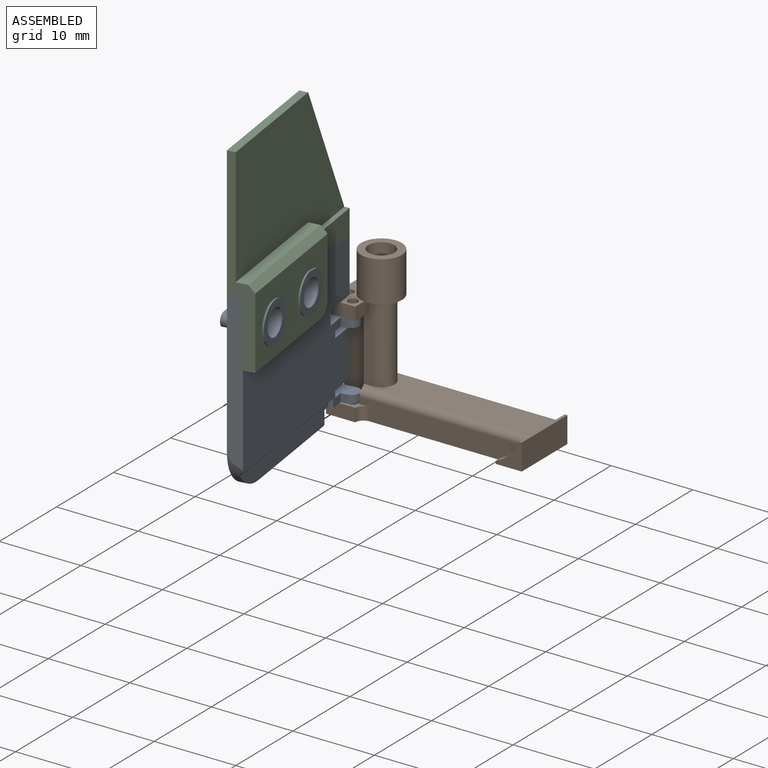
[diagram: assembled view]
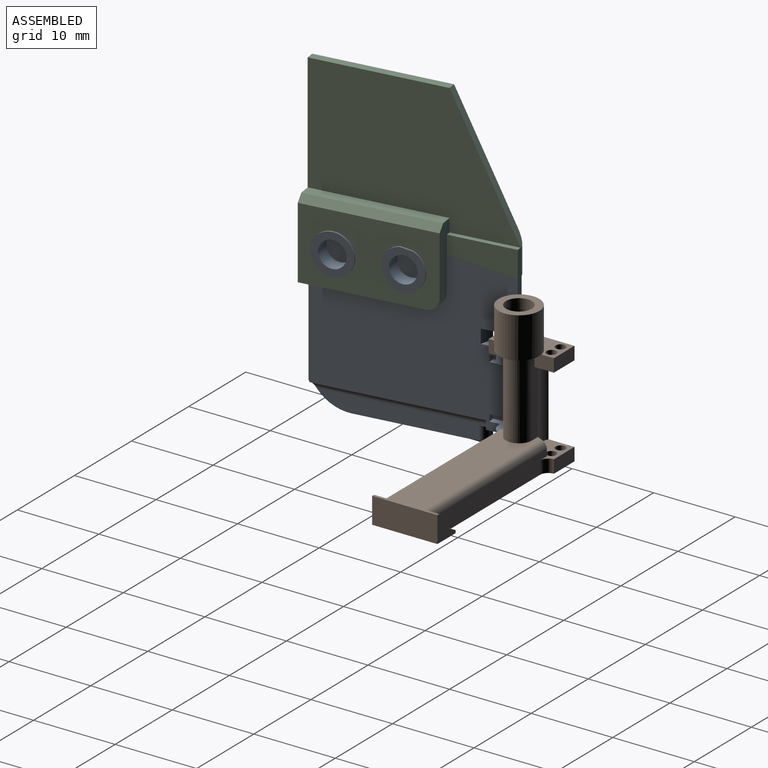
[diagram: assembled view, second angle]
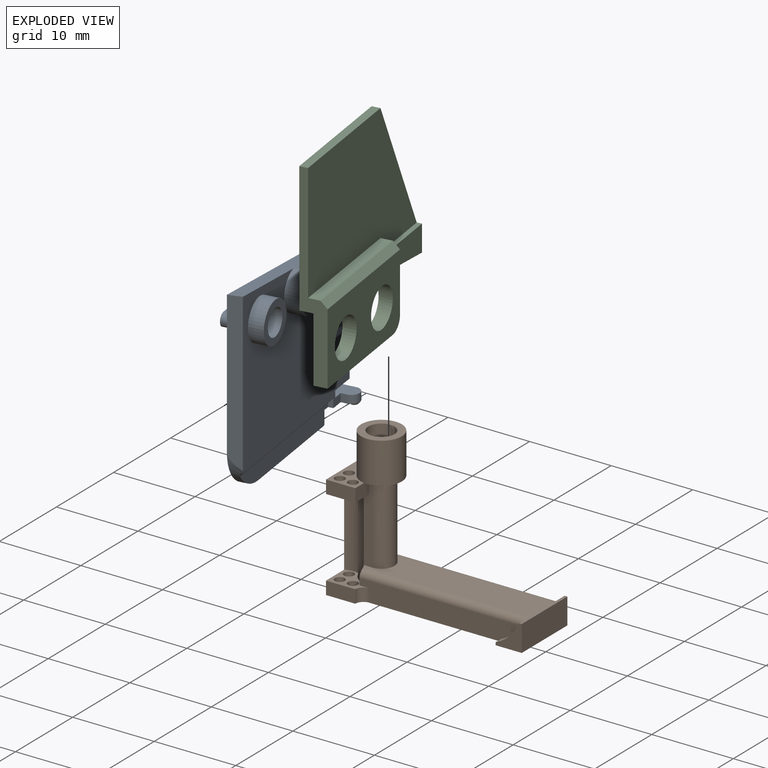
[diagram: exploded view]
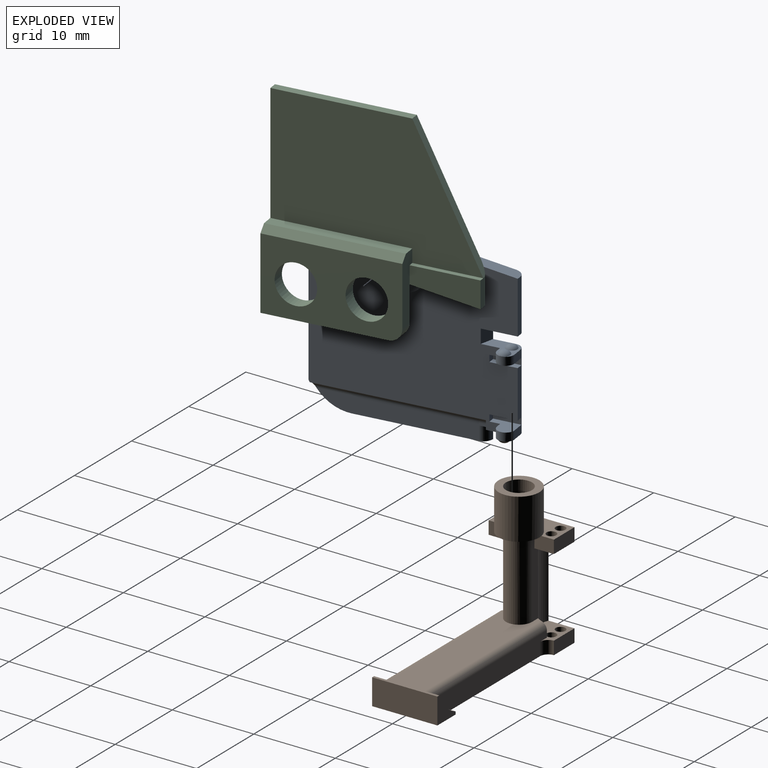
[diagram: exploded view, second angle]
ASSEMBLY  parts=3 mates=5
PART A: 50 faces, bbox 5x24x22.4 mm
  f0: plane 23x22.4mm, normal (1,0,0), area 458.3mm2, adj f2,f3,f11,f12,f13,f15,f16,f17
  f1: plane 23.6x20.65mm, normal (-1,0,0), area 373.2mm2, adj f2,f4,f7,f11,f14,f20,f21,f22
  f2: plane 19.36x1.6mm, normal (-0.24,0.97,0), area 30.8mm2, adj f0,f1,f11,f48
  f3: cylinder r=1mm len=6.53mm, axis (0,0,-1), area 10.1mm2, adj f0,f14,f20,f48
  f4: cylinder r=2.5mm len=5mm, axis (1,0,0), area 25.5mm2, adj f1,f5,f48
  f5: plane 5x4.96mm, normal (-1,0,0), area 11.5mm2, adj f4,f46,f48
  f6: plane 1.3x1mm, normal (0,-1,0), area 1.3mm2, adj f23,f27,f32,f41
  f7: plane 5.8x0.6mm, normal (0,-1,0), area 3.5mm2, adj f1,f36,f38,f41
  f8: plane 1.3x1mm, normal (0,-1,0), area 1.3mm2, adj f21,f29,f31,f41
  f9: torus R=0.07mm, axis (0,0,1), area 2.1mm2, adj f23
  f10: torus R=0.07mm, axis (0,0,1), area 2.1mm2, adj f21
  f11: cylinder r=5mm len=5mm, axis (1,0,0), area 7.2mm2, adj f0,f1,f2,f12,f25,f26
  f12: plane 15.4x1mm, normal (0,0,-1), area 15.1mm2, adj f0,f11,f13,f26,f49
  f13: plane 1.7x0.34mm, normal (-0.34,-0.94,0), area 0.6mm2, adj f0,f12,f23,f49
  f14: plane 6.4x0.6mm, normal (0,-1,0), area 3.8mm2, adj f1,f3,f20,f48
  f15: cylinder r=0.8mm len=1.6mm, axis (-1,0,0), area 4mm2, adj f0,f16,f18,f19
  f16: plane 3.4x1.6mm, normal (0,0,1), area 5.4mm2, adj f0,f15,f17,f19
  f17: cylinder r=0.8mm len=1.6mm, axis (-1,0,0), area 4mm2, adj f0,f16,f18,f19
  f18: plane 3.4x1.6mm, normal (0,0,-1), area 5.4mm2, adj f0,f15,f17,f19
  f19: plane 5x1.6mm, normal (1,0,0), area 7.5mm2, adj f15,f16,f17,f18
  f20: plane 4.18x1.6mm, normal (0,0,-1), area 6mm2, adj f0,f1,f3,f14,f22
  f21: plane 4.18x3.3mm, normal (0,0,1), area 5.9mm2, adj f0,f1,f8,f10,f22,f30,f31,f33
  f22: plane 1.7x1.6mm, normal (-0.34,-0.94,0), area 2.9mm2, adj f0,f1,f20,f21
  f23: plane 4.66x3.3mm, normal (0,0,-1), area 5.7mm2, adj f0,f1,f6,f9,f13,f24,f26,f28
  f24: plane 1.07x0.6mm, normal (0,1,0), area 0.5mm2, adj f1,f23,f25,f26
  f25: cylinder r=0.8mm len=19.88mm, axis (0,-1,0), area 20.8mm2, adj f1,f11,f24,f26
  f26: plane 19.4x2mm, normal (-1,0,0), area 34.6mm2, adj f11,f12,f23,f24,f25,f49
  f27: plane 3.2x2.5mm, normal (0,0,1), area 5.5mm2, adj f1,f6,f28,f32,f35,f37,f41
  f28: plane 1x0.7mm, normal (0,1,0), area 0.7mm2, adj f1,f23,f27,f32
  f29: plane 3.2x2.5mm, normal (0,0,-1), area 5.5mm2, adj f1,f8,f30,f31,f39,f40,f41
  f30: plane 1x0.7mm, normal (0,1,0), area 0.7mm2, adj f1,f21,f29,f31
  f31: cylinder r=1mm len=2mm, axis (0,0,1), area 3.1mm2, adj f8,f21,f29,f30
  f32: cylinder r=1mm len=2mm, axis (0,0,-1), area 3.1mm2, adj f6,f23,f27,f28
  f33: torus R=0.07mm, axis (0,0,1), area 2.1mm2, adj f21
  f34: torus R=0.07mm, axis (0,0,1), area 2.1mm2, adj f23
  f35: plane 3.18x0.8mm, normal (-1,0,0), area 2.5mm2, adj f27,f36,f37,f41
  f36: plane 3.2x0.8mm, normal (0,0,-1), area 2.6mm2, adj f1,f7,f35,f37,f41
  f37: plane 0.8x0.8mm, normal (0,-1,0), area 0.6mm2, adj f1,f27,f35,f36
  f38: plane 3.2x0.8mm, normal (0,0,1), area 2.6mm2, adj f1,f7,f39,f40,f41
  f39: plane 3.18x0.8mm, normal (-1,0,0), area 2.5mm2, adj f29,f38,f40,f41
  f40: plane 0.8x0.8mm, normal (0,-1,0), area 0.6mm2, adj f1,f29,f38,f39
  f41: cylinder r=1mm len=9.4mm, axis (0,0,-1), area 14.4mm2, adj f0,f6,f7,f8,f21,f23,f27,f29
  f42: cylinder r=1.6mm len=3.2mm, axis (1,0,0), area 18.1mm2, adj f44,f45
  f43: cylinder r=2.5mm len=5mm, axis (1,0,0), area 28.3mm2, adj f1,f44
  f44: plane 5x5mm, normal (-1,0,0), area 11.6mm2, adj f42,f43
  f45: plane 3.2x3.2mm, normal (-1,0,0), area 8mm2, adj f42
  f46: cylinder r=1.6mm len=3.2mm, axis (1,0,0), area 18.1mm2, adj f5,f47
  f47: plane 3.2x3.2mm, normal (-1,0,0), area 8mm2, adj f46
  f48: plane 24x3.4mm, normal (0,-0.13,0.99), area 41mm2, adj f0,f1,f2,f3,f4,f5,f14
  f49: cylinder r=1mm len=1.7mm, axis (0,0,-1), area 2.1mm2, adj f12,f13,f23,f26
PART B: 65 faces, bbox 24x8x17.8 mm
  f0: plane 24x8mm, normal (0,0,-1), area 65.3mm2, adj f3,f4,f5,f6,f7,f8,f9,f10
  f1: cylinder r=1.6mm len=3.2mm, axis (0,0,-1), area 20.1mm2, adj f2,f59
  f2: plane 3.2x3.2mm, normal (0,0,-1), area 8mm2, adj f1
  f3: plane 5.17x2mm, normal (0,-1,0), area 10.3mm2, adj f0,f5,f59,f62
  f4: plane 5.17x2mm, normal (0,1,0), area 10.3mm2, adj f0,f6,f59,f63
  f5: cylinder r=2.45mm len=2.83mm, axis (0,0,-1), area 6mm2, adj f0,f3,f57,f59
  f6: cylinder r=2.45mm len=2.83mm, axis (0,0,-1), area 6mm2, adj f0,f4,f56,f59
  f7: plane 2x1.04mm, normal (0,1,0), area 2.1mm2, adj f0,f58,f59,f63
  f8: plane 2x1.04mm, normal (0,-1,0), area 2.1mm2, adj f0,f58,f59,f62
  f9: plane 1x0.34mm, normal (-1,0,0), area 0.3mm2, adj f0,f24,f28,f29
  f10: plane 1x0.34mm, normal (-1,0,0), area 0.3mm2, adj f0,f19,f27,f30
  f11: cylinder r=0.6mm len=1.6mm, axis (0,0,1), area 6mm2, adj f0,f41
  f12: cylinder r=0.6mm len=1.6mm, axis (0,0,1), area 6mm2, adj f34,f46
  f13: plane 12.8x8mm, normal (-1,0,0), area 41.3mm2, adj f0,f34,f40,f41,f42,f43,f44,f46
  f14: cylinder r=0.6mm len=1.6mm, axis (0,0,1), area 6mm2, adj f0,f41
  f15: cylinder r=0.6mm len=1.6mm, axis (0,0,1), area 6mm2, adj f0,f42
  f16: cylinder r=0.6mm len=1.6mm, axis (0,0,1), area 6mm2, adj f34,f47
  f17: cylinder r=0.6mm len=1.6mm, axis (0,0,1), area 6mm2, adj f0,f42
  f18: cylinder r=0.6mm len=1.6mm, axis (0,0,1), area 6mm2, adj f34,f47
  f19: plane 19.87x2.4mm, normal (0,-1,0), area 43mm2, adj f0,f10,f20,f27,f42,f51,f54
  f20: cylinder r=0.8mm len=20.4mm, axis (-1,0,0), area 25.3mm2, adj f19,f27,f31,f51
  f21: plane 9.6x1.05mm, normal (0,-1,0), area 9mm2, adj f23,f25,f31,f47,f48,f51
  f22: cylinder r=0.6mm len=1.6mm, axis (0,0,1), area 6mm2, adj f0,f42
  f23: plane 5x2.9mm, normal (0,0,-1), area 6.5mm2, adj f21,f25,f33,f37,f45,f48
  f24: plane 19.87x2.4mm, normal (0,1,0), area 43mm2, adj f0,f9,f28,f32,f41,f53,f55
  f25: cylinder r=1.6mm len=9.6mm, axis (0,0,-1), area 48.3mm2, adj f21,f23,f31,f33
  f26: plane 8x3.2mm, normal (1,0,0), area 25.6mm2, adj f0,f29,f30,f31
  f27: cylinder r=5mm len=2.86mm, axis (0,-1,0), area 4.5mm2, adj f10,f19,f20,f30,f31
  f28: cylinder r=5mm len=2.86mm, axis (0,-1,0), area 4.5mm2, adj f9,f24,f29,f31,f32
  f29: plane 3.2x3.2mm, normal (0,1,0), area 5mm2, adj f0,f9,f26,f28,f31
  f30: plane 3.2x3.2mm, normal (0,-1,0), area 5mm2, adj f0,f10,f26,f27,f31
  f31: plane 21.05x8mm, normal (0,0,1), area 86.2mm2, adj f20,f21,f25,f26,f27,f28,f29,f30
  f32: cylinder r=0.8mm len=20.4mm, axis (1,0,0), area 25.3mm2, adj f24,f28,f31,f53
  f33: plane 9.6x1.05mm, normal (0,1,0), area 9mm2, adj f23,f25,f31,f45,f46,f53
  f34: plane 8x3.6mm, normal (0,0,1), area 15.3mm2, adj f12,f13,f16,f18,f37,f44,f45,f48
  f35: extruded ~3.4x3.2mm, area 17.1mm2, adj f36,f38,f39
  f36: cylinder r=1.6mm len=3.4mm, axis (0,0,-1), area 17.1mm2, adj f35,f38,f39
  f37: cylinder r=2.5mm len=5mm, axis (0,0,-1), area 78.5mm2, adj f23,f34,f38
  f38: plane 5x5mm, normal (0,0,1), area 11.6mm2, adj f35,f36,f37
  f39: plane 3.2x3.2mm, normal (0,0,1), area 8mm2, adj f35,f36
  f40: plane 3.6x1.6mm, normal (0,1,0), area 5.8mm2, adj f0,f13,f41,f55
  f41: plane 4.6x3.4mm, normal (0,0,1), area 7.6mm2, adj f11,f13,f14,f24,f40,f53,f55,f64
  f42: plane 4.6x3.4mm, normal (0,0,1), area 6.4mm2, adj f13,f15,f17,f19,f22,f43,f51,f54
  f43: plane 3.6x1.6mm, normal (0,-1,0), area 5.8mm2, adj f0,f13,f42,f54
  f44: plane 3.6x1.6mm, normal (0,1,0), area 5.8mm2, adj f13,f34,f45,f46
  f45: plane 2.4x1.6mm, normal (1,0,0), area 3.8mm2, adj f23,f33,f34,f44,f46
  f46: plane 3.6x3.4mm, normal (0,0,-1), area 8.7mm2, adj f12,f13,f33,f44,f45,f52,f53
  f47: plane 3.6x3.4mm, normal (0,0,-1), area 7.5mm2, adj f13,f16,f18,f21,f48,f49,f50,f51
  f48: plane 2.4x1.6mm, normal (1,0,0), area 3.8mm2, adj f21,f23,f34,f47,f49
  f49: plane 3.6x1.6mm, normal (0,-1,0), area 5.8mm2, adj f13,f34,f47,f48
  f50: cylinder r=0.6mm len=1.6mm, axis (0,0,1), area 6mm2, adj f34,f47
  f51: cylinder r=2.4mm len=9.6mm, axis (0,0,-1), area 33.1mm2, adj f13,f19,f20,f21,f31,f42,f47,f59
  f52: cylinder r=0.6mm len=1.6mm, axis (0,0,1), area 6mm2, adj f34,f46
  f53: cylinder r=2.4mm len=9.6mm, axis (0,0,-1), area 33.1mm2, adj f13,f24,f31,f32,f33,f41,f46,f59
  f54: cylinder r=1mm len=1.6mm, axis (0,0,-1), area 2.5mm2, adj f0,f19,f42,f43
  f55: cylinder r=1mm len=1.6mm, axis (0,0,1), area 2.5mm2, adj f0,f24,f40,f41
  f56: plane 5.26x2mm, normal (0,1,0), area 10.5mm2, adj f0,f6,f59,f64
  f57: plane 5.26x2mm, normal (0,-1,0), area 10.5mm2, adj f0,f5,f59,f64
  f58: plane 4x2mm, normal (-1,0,0), area 8mm2, adj f0,f7,f8,f59
  f59: plane 20.85x4.9mm, normal (0,0,-1), area 69.3mm2, adj f1,f3,f4,f5,f6,f7,f8,f51
  f60: plane 3.2x3.2mm, normal (0,0,-1), area 8mm2, adj f61
  f61: cylinder r=1.6mm len=3.2mm, axis (0,0,-1), area 20.1mm2, adj f59,f60
  f62: cylinder r=2.45mm len=2.83mm, axis (0,0,-1), area 6mm2, adj f0,f3,f8,f59
  f63: cylinder r=2.45mm len=2.83mm, axis (0,0,-1), area 6mm2, adj f0,f4,f7,f59
  f64: cylinder r=2.4mm len=4.8mm, axis (0,0,-1), area 18.8mm2, adj f0,f41,f42,f51,f53,f56,f57,f59
PART C: 20 faces, bbox 3.2x24x24 mm
  f0: plane 23.2x19.09mm, normal (1,0,0), area 355.2mm2, adj f1,f2,f4,f6,f18
  f1: plane 16x8mm, normal (0,-0.89,0.45), area 17.6mm2, adj f0,f4,f5,f17,f18
  f2: plane 24x3.2mm, normal (0,0.13,-0.99), area 38.6mm2, adj f0,f3,f6,f14,f15,f17,f18
  f3: plane 16x8mm, normal (1,0,0), area 74.2mm2, adj f2,f6,f7,f8,f9,f10,f19
  f4: plane 16x1mm, normal (0,0,1), area 16mm2, adj f0,f1,f5,f6
  f5: plane 24x16mm, normal (-1,0,0), area 294.4mm2, adj f1,f4,f6,f7,f12,f16
  f6: plane 24x3.2mm, normal (0,1,0), area 32mm2, adj f0,f2,f3,f4,f5,f9,f11,f12
  f7: plane 8x2.2mm, normal (0,-1,0), area 13.4mm2, adj f3,f5,f11,f12,f13,f15,f16,f19
  f8: cylinder r=2.4mm len=4.8mm, axis (-1,0,0), area 24.1mm2, adj f3,f11,f14
  f9: plane 14.4x1.6mm, normal (0,0,-1), area 23mm2, adj f3,f6,f11,f19
  f10: cylinder r=2.4mm len=4.8mm, axis (-1,0,0), area 24.1mm2, adj f3,f11
  f11: plane 16x8.8mm, normal (-1,0,0), area 104.1mm2, adj f6,f7,f8,f9,f10,f13,f19
  f12: plane 16x1.4mm, normal (0,0,1), area 22.4mm2, adj f5,f6,f7,f13
  f13: plane 16x0.8mm, normal (-0.71,0,0.71), area 18.1mm2, adj f6,f7,f11,f12
  f14: plane 0.63x0.08mm, normal (-1,0,0), area 0mm2, adj f2,f8
  f15: plane 8x3.2mm, normal (-1,0,0), area 21.3mm2, adj f2,f7,f16,f17
  f16: plane 8x0.6mm, normal (0,0,1), area 4.8mm2, adj f5,f7,f15,f17
  f17: plane 3.2x0.8mm, normal (0,-1,0), area 2.6mm2, adj f1,f2,f15,f16,f18
  f18: cylinder r=0.8mm len=4.8mm, axis (0,0,-1), area 4.7mm2, adj f0,f1,f2,f17
  f19: cylinder r=1.6mm len=1.6mm, axis (1,0,0), area 4mm2, adj f3,f7,f9,f11
PLACE A rot(axis=(0,0,-1),172deg) t=(-3.28,-13.09,9.81)mm
PLACE B t=(7.19,0.95,-1.39)mm fixed
PLACE C rot(axis=(0,0,-1),172deg) t=(0.45,-16.6,21.01)mm
MATE planar B.f0 <-> A.f12  axis (0,0,-1) through (-4.81,0.95,-1.39)mm
MATE planar C.f3 <-> A.f1  axis (-0.99,-0.14,0) through (-1.04,-17.49,16.28)mm
MATE cylindrical B.f22 <-> A.f33  axis (0,0,-1) through (-3.81,-2.05,-1.39)mm
MATE cylindrical A.f42 <-> C.f10  axis (-0.99,-0.14,0) through (-0.58,-20.79,17.01)mm
MATE parallel C.f9 <-> A.f23  axis (0,0,-1) through (-0.23,-17.51,13.01)mm
